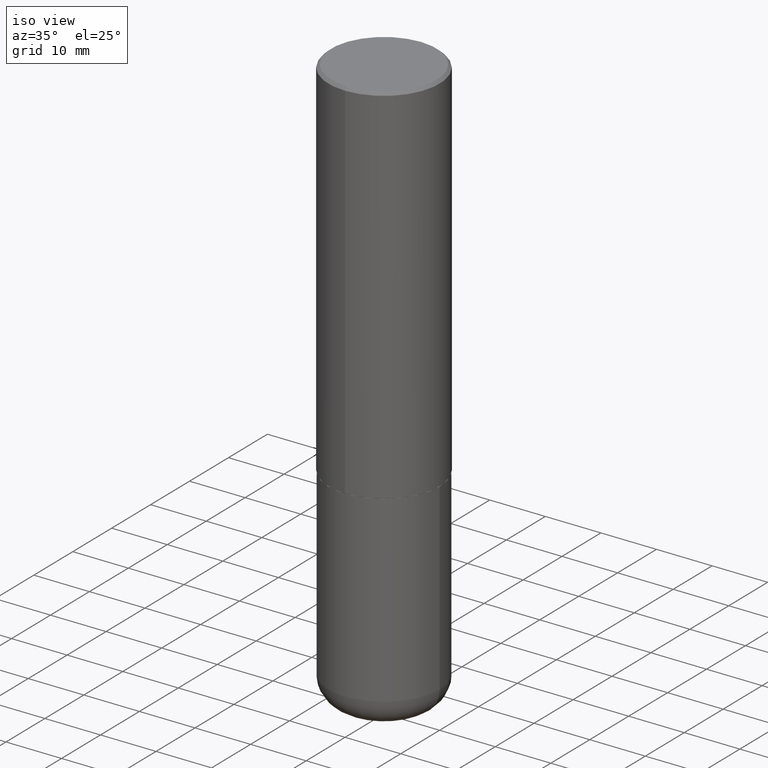
[diagram: clean part render]
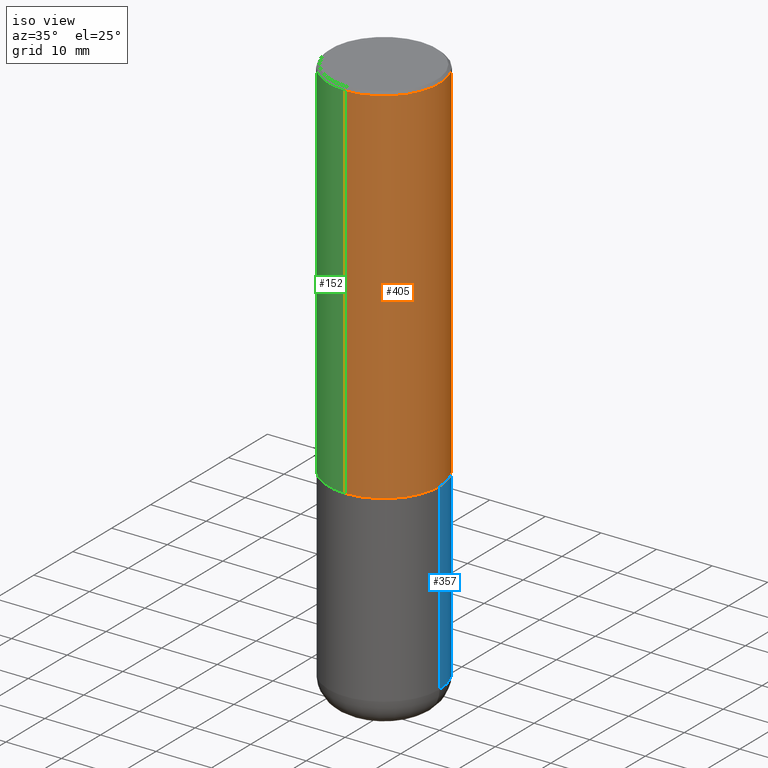
[diagram: same view with three faces highlighted in distinct colors, each labeled with its STEP entity id]
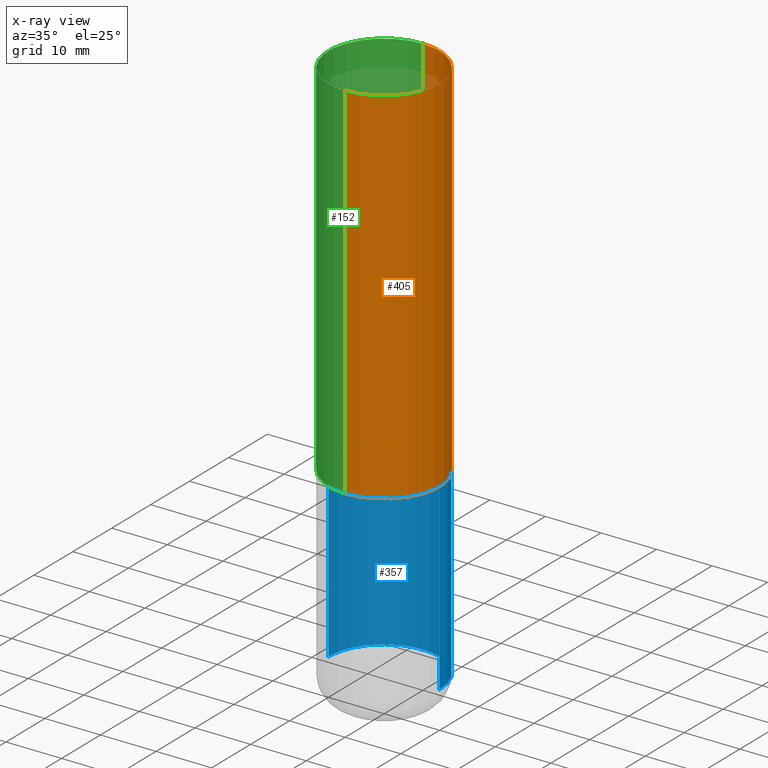
[diagram: x-ray of the same camera — body ghosted, the three highlighted faces saturated]
A machine part, iso view with three faces highlighted in distinct colors.
The next image is the same camera in x-ray (body ghosted, the three faces saturated) — at least one of them is partly hidden behind the body in this view.
Their STEP definitions:

[orange] entity #405 — the highlighted cylindrical surface (partial cylindrical patch) has radius 10 mm, axis along (-0, 0, 1).
#8 = DIRECTION ( 'NONE',  ( -2.443239332009390457E-29, 3.494674072756603537E-15, 1.000000000000000000 ) ) ;
#38 = ORIENTED_EDGE ( 'NONE', *, *, #186, .T. ) ;
#41 = CARTESIAN_POINT ( 'NONE',  ( -2.749192406205021291E-15, -0.3937000000000093758, -2.597399999999998155 ) ) ;
#56 = CIRCLE ( 'NONE', #138, 0.3937000000000002720 ) ;
#63 = VERTEX_POINT ( 'NONE', #173 ) ;
#94 = ORIENTED_EDGE ( 'NONE', *, *, #401, .F. ) ;
#97 = CARTESIAN_POINT ( 'NONE',  ( 0.000000000000000000, 0.000000000000000000, 0.000000000000000000 ) ) ;
#128 = ORIENTED_EDGE ( 'NONE', *, *, #129, .F. ) ;
#129 = EDGE_CURVE ( 'NONE', #182, #268, #366, .T. ) ;
#134 = DIRECTION ( 'NONE',  ( -6.982962677686265922E-15, -1.000000000000000000, 4.163344669033672479E-15 ) ) ;
#138 = AXIS2_PLACEMENT_3D ( 'NONE', #141, #399, #134 ) ;
#141 = CARTESIAN_POINT ( 'NONE',  ( 6.346069840961192103E-29, -9.077066436578000720E-15, -2.597399999999999931 ) ) ;
#162 = LINE ( 'NONE', #303, #360 ) ;
#173 = CARTESIAN_POINT ( 'NONE',  ( 2.749192406205083217E-15, 0.3936999999999999389, -0.02000000000000146105 ) ) ;
#174 = EDGE_CURVE ( 'NONE', #182, #349, #56, .T. ) ;
#181 = CARTESIAN_POINT ( 'NONE',  ( -2.700978061722651252E-15, -0.3937000000000001054, -0.01999999999999870978 ) ) ;
#182 = VERTEX_POINT ( 'NONE', #41 ) ;
#183 = VECTOR ( 'NONE', #277, 39.37007874015748143 ) ;
#186 = EDGE_CURVE ( 'NONE', #349, #63, #162, .T. ) ;
#198 = DIRECTION ( 'NONE',  ( -2.443239332009390737E-29, 3.494674072756603537E-15, 1.000000000000000000 ) ) ;
#230 = EDGE_LOOP ( 'NONE', ( #298, #38, #94, #128 ) ) ;
#240 = CARTESIAN_POINT ( 'NONE',  ( 4.886478664018802704E-31, -6.989348145513235967E-17, -0.02000000000000008715 ) ) ;
#241 = CARTESIAN_POINT ( 'NONE',  ( -2.749192406205084005E-15, -0.3937000000000001609, 1.375853182444275537E-15 ) ) ;
#243 = FACE_OUTER_BOUND ( 'NONE', #230, .T. ) ;
#266 = CARTESIAN_POINT ( 'NONE',  ( 2.797406750687547524E-15, 0.3936999999999912236, -2.597400000000001707 ) ) ;
#268 = VERTEX_POINT ( 'NONE', #181 ) ;
#275 = AXIS2_PLACEMENT_3D ( 'NONE', #97, #354, #333 ) ;
#277 = DIRECTION ( 'NONE',  ( -2.443239332009390457E-29, 3.494674072756603537E-15, 1.000000000000000000 ) ) ;
#298 = ORIENTED_EDGE ( 'NONE', *, *, #174, .T. ) ;
#300 = CIRCLE ( 'NONE', #394, 0.3937000000000000499 ) ;
#303 = CARTESIAN_POINT ( 'NONE',  ( 2.797406750687515181E-15, 0.3937000000000001609, -1.375853182444275537E-15 ) ) ;
#321 = CYLINDRICAL_SURFACE ( 'NONE', #275, 0.3937000000000001609 ) ;
#333 = DIRECTION ( 'NONE',  ( -6.982962677686265922E-15, -1.000000000000000000, 3.494674072756603932E-15 ) ) ;
#349 = VERTEX_POINT ( 'NONE', #266 ) ;
#354 = DIRECTION ( 'NONE',  ( -2.443239332009390737E-29, 3.494674072756603537E-15, 1.000000000000000000 ) ) ;
#360 = VECTOR ( 'NONE', #8, 39.37007874015748143 ) ;
#366 = LINE ( 'NONE', #241, #183 ) ;
#394 = AXIS2_PLACEMENT_3D ( 'NONE', #240, #198, #413 ) ;
#399 = DIRECTION ( 'NONE',  ( -2.443239332009390737E-29, 3.494674072756603537E-15, 1.000000000000000000 ) ) ;
#401 = EDGE_CURVE ( 'NONE', #268, #63, #300, .T. ) ;
#405 = ADVANCED_FACE ( 'NONE', ( #243 ), #321, .T. ) ;
#413 = DIRECTION ( 'NONE',  ( -6.982962677686265133E-15, -1.000000000000000000, 3.491137977679279424E-15 ) ) ;

[blue] entity #357 — the highlighted cylindrical surface (partial cylindrical patch) has radius 10 mm, axis along (-0, 0, 1).
#14 = DIRECTION ( 'NONE',  ( -2.445468806185136877E-29, 3.491481338843145188E-15, 1.000000000000000000 ) ) ;
#22 = DIRECTION ( 'NONE',  ( 1.000000000000000000, -6.982962677686267499E-15, 0.000000000000000000 ) ) ;
#33 = ORIENTED_EDGE ( 'NONE', *, *, #136, .T. ) ;
#42 = CYLINDRICAL_SURFACE ( 'NONE', #68, 0.3937000000000000499 ) ;
#54 = DIRECTION ( 'NONE',  ( -2.445468806185136597E-29, 3.491481338843145583E-15, 1.000000000000000000 ) ) ;
#68 = AXIS2_PLACEMENT_3D ( 'NONE', #234, #106, #127 ) ;
#75 = LINE ( 'NONE', #205, #386 ) ;
#79 = AXIS2_PLACEMENT_3D ( 'NONE', #150, #184, #408 ) ;
#106 = DIRECTION ( 'NONE',  ( -2.445468806185136597E-29, 3.491481338843145583E-15, 1.000000000000000000 ) ) ;
#114 = AXIS2_PLACEMENT_3D ( 'NONE', #342, #54, #22 ) ;
#115 = EDGE_CURVE ( 'NONE', #380, #189, #75, .T. ) ;
#126 = VERTEX_POINT ( 'NONE', #239 ) ;
#127 = DIRECTION ( 'NONE',  ( 1.000000000000000000, -6.982962677686265922E-15, 4.876176775795935793E-29 ) ) ;
#136 = EDGE_CURVE ( 'NONE', #350, #126, #139, .T. ) ;
#139 = LINE ( 'NONE', #171, #267 ) ;
#147 = ORIENTED_EDGE ( 'NONE', *, *, #217, .F. ) ;
#148 = EDGE_LOOP ( 'NONE', ( #292, #33, #147, #297 ) ) ;
#149 = CIRCLE ( 'NONE', #114, 0.3937000000000000499 ) ;
#150 = CARTESIAN_POINT ( 'NONE',  ( 6.354306145991459756E-29, -9.072265110850031044E-15, -2.598400000000000265 ) ) ;
#158 = CARTESIAN_POINT ( 'NONE',  ( -0.3936999999999999389, -1.081099091558753178E-14, -3.897600000000000620 ) ) ;
#171 = CARTESIAN_POINT ( 'NONE',  ( -0.3937000000000000499, 2.797406750687514786E-15, -1.936584745033356735E-29 ) ) ;
#184 = DIRECTION ( 'NONE',  ( -2.445468806185136597E-29, 3.491481338843145583E-15, 1.000000000000000000 ) ) ;
#189 = VERTEX_POINT ( 'NONE', #272 ) ;
#205 = CARTESIAN_POINT ( 'NONE',  ( 0.3937000000000000499, -2.749192406205083217E-15, 1.919750796630860172E-29 ) ) ;
#217 = EDGE_CURVE ( 'NONE', #189, #126, #338, .T. ) ;
#234 = CARTESIAN_POINT ( 'NONE',  ( 0.000000000000000000, 0.000000000000000000, 0.000000000000000000 ) ) ;
#239 = CARTESIAN_POINT ( 'NONE',  ( -0.3937000000000000499, -8.542924637875024414E-15, -2.598400000000000265 ) ) ;
#244 = DIRECTION ( 'NONE',  ( -2.445468806185136877E-29, 3.491481338843145188E-15, 1.000000000000000000 ) ) ;
#267 = VECTOR ( 'NONE', #244, 39.37007874015748143 ) ;
#272 = CARTESIAN_POINT ( 'NONE',  ( 0.3937000000000000499, -1.182145751705511584E-14, -2.598400000000000265 ) ) ;
#284 = EDGE_CURVE ( 'NONE', #380, #350, #149, .T. ) ;
#290 = FACE_OUTER_BOUND ( 'NONE', #148, .T. ) ;
#292 = ORIENTED_EDGE ( 'NONE', *, *, #284, .T. ) ;
#297 = ORIENTED_EDGE ( 'NONE', *, *, #115, .F. ) ;
#338 = CIRCLE ( 'NONE', #79, 0.3937000000000000499 ) ;
#342 = CARTESIAN_POINT ( 'NONE',  ( 9.531459218987190195E-29, -1.360839766627504578E-14, -3.897600000000000620 ) ) ;
#350 = VERTEX_POINT ( 'NONE', #158 ) ;
#357 = ADVANCED_FACE ( 'NONE', ( #290 ), #42, .T. ) ;
#380 = VERTEX_POINT ( 'NONE', #387 ) ;
#386 = VECTOR ( 'NONE', #14, 39.37007874015748143 ) ;
#387 = CARTESIAN_POINT ( 'NONE',  ( 0.3936999999999999389, -1.635759007248013057E-14, -3.897600000000000620 ) ) ;
#408 = DIRECTION ( 'NONE',  ( 1.000000000000000000, -6.982962677686267499E-15, 0.000000000000000000 ) ) ;

[green] entity #152 — the highlighted cylindrical surface (partial cylindrical patch) has radius 10 mm, axis along (-0, 0, 1).
#3 = CIRCLE ( 'NONE', #248, 0.3937000000000002720 ) ;
#8 = DIRECTION ( 'NONE',  ( -2.443239332009390457E-29, 3.494674072756603537E-15, 1.000000000000000000 ) ) ;
#25 = CARTESIAN_POINT ( 'NONE',  ( 6.346069840961192103E-29, -9.077066436578000720E-15, -2.597399999999999931 ) ) ;
#31 = ORIENTED_EDGE ( 'NONE', *, *, #271, .T. ) ;
#39 = EDGE_CURVE ( 'NONE', #63, #268, #89, .T. ) ;
#41 = CARTESIAN_POINT ( 'NONE',  ( -2.749192406205021291E-15, -0.3937000000000093758, -2.597399999999998155 ) ) ;
#63 = VERTEX_POINT ( 'NONE', #173 ) ;
#71 = EDGE_LOOP ( 'NONE', ( #197, #31, #124, #327 ) ) ;
#89 = CIRCLE ( 'NONE', #381, 0.3937000000000000499 ) ;
#124 = ORIENTED_EDGE ( 'NONE', *, *, #129, .T. ) ;
#129 = EDGE_CURVE ( 'NONE', #182, #268, #366, .T. ) ;
#152 = ADVANCED_FACE ( 'NONE', ( #392 ), #202, .T. ) ;
#162 = LINE ( 'NONE', #303, #360 ) ;
#173 = CARTESIAN_POINT ( 'NONE',  ( 2.749192406205083217E-15, 0.3936999999999999389, -0.02000000000000146105 ) ) ;
#181 = CARTESIAN_POINT ( 'NONE',  ( -2.700978061722651252E-15, -0.3937000000000001054, -0.01999999999999870978 ) ) ;
#182 = VERTEX_POINT ( 'NONE', #41 ) ;
#183 = VECTOR ( 'NONE', #277, 39.37007874015748143 ) ;
#186 = EDGE_CURVE ( 'NONE', #349, #63, #162, .T. ) ;
#197 = ORIENTED_EDGE ( 'NONE', *, *, #186, .F. ) ;
#202 = CYLINDRICAL_SURFACE ( 'NONE', #325, 0.3937000000000001609 ) ;
#241 = CARTESIAN_POINT ( 'NONE',  ( -2.749192406205084005E-15, -0.3937000000000001609, 1.375853182444275537E-15 ) ) ;
#248 = AXIS2_PLACEMENT_3D ( 'NONE', #25, #286, #249 ) ;
#249 = DIRECTION ( 'NONE',  ( -6.982962677686265922E-15, -1.000000000000000000, 4.163344669033672479E-15 ) ) ;
#266 = CARTESIAN_POINT ( 'NONE',  ( 2.797406750687547524E-15, 0.3936999999999912236, -2.597400000000001707 ) ) ;
#268 = VERTEX_POINT ( 'NONE', #181 ) ;
#269 = CARTESIAN_POINT ( 'NONE',  ( 4.886478664018802704E-31, -6.989348145513235967E-17, -0.02000000000000008715 ) ) ;
#271 = EDGE_CURVE ( 'NONE', #349, #182, #3, .T. ) ;
#277 = DIRECTION ( 'NONE',  ( -2.443239332009390457E-29, 3.494674072756603537E-15, 1.000000000000000000 ) ) ;
#286 = DIRECTION ( 'NONE',  ( -2.443239332009390737E-29, 3.494674072756603537E-15, 1.000000000000000000 ) ) ;
#303 = CARTESIAN_POINT ( 'NONE',  ( 2.797406750687515181E-15, 0.3937000000000001609, -1.375853182444275537E-15 ) ) ;
#325 = AXIS2_PLACEMENT_3D ( 'NONE', #334, #368, #332 ) ;
#327 = ORIENTED_EDGE ( 'NONE', *, *, #39, .F. ) ;
#332 = DIRECTION ( 'NONE',  ( -6.982962677686265922E-15, -1.000000000000000000, 3.494674072756603932E-15 ) ) ;
#334 = CARTESIAN_POINT ( 'NONE',  ( 0.000000000000000000, 0.000000000000000000, 0.000000000000000000 ) ) ;
#337 = DIRECTION ( 'NONE',  ( -6.982962677686265133E-15, -1.000000000000000000, 3.491137977679279424E-15 ) ) ;
#349 = VERTEX_POINT ( 'NONE', #266 ) ;
#360 = VECTOR ( 'NONE', #8, 39.37007874015748143 ) ;
#361 = DIRECTION ( 'NONE',  ( -2.443239332009390737E-29, 3.494674072756603537E-15, 1.000000000000000000 ) ) ;
#366 = LINE ( 'NONE', #241, #183 ) ;
#368 = DIRECTION ( 'NONE',  ( -2.443239332009390737E-29, 3.494674072756603537E-15, 1.000000000000000000 ) ) ;
#381 = AXIS2_PLACEMENT_3D ( 'NONE', #269, #361, #337 ) ;
#392 = FACE_OUTER_BOUND ( 'NONE', #71, .T. ) ;